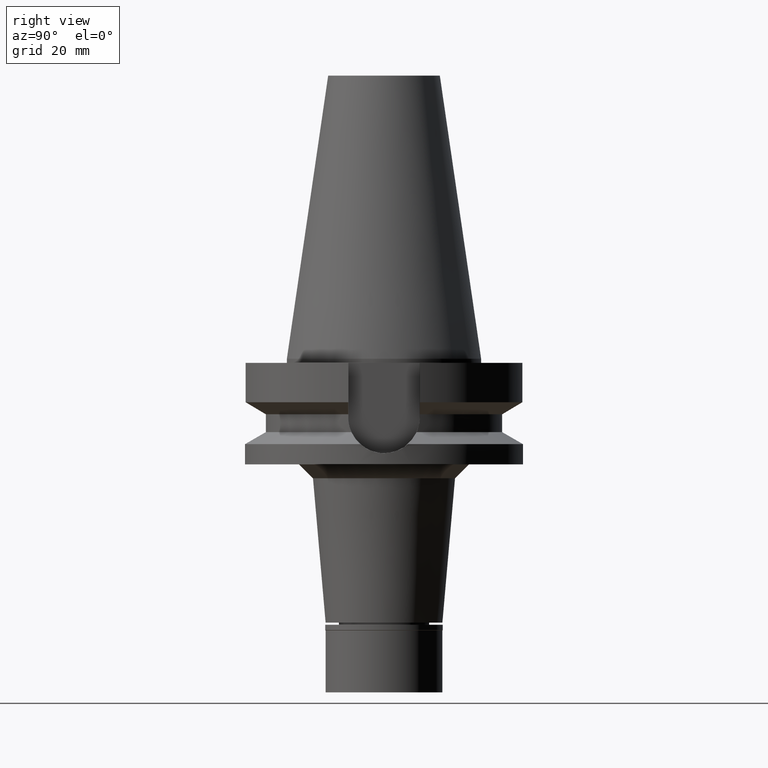
[diagram: clean part render]
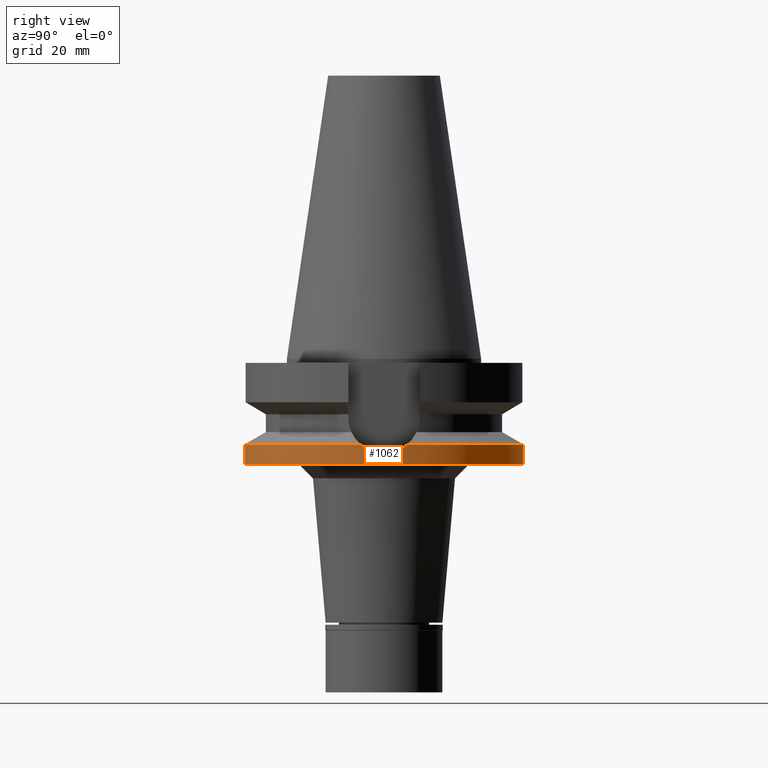
[diagram: same view with one face highlighted and labeled with its STEP entity id]
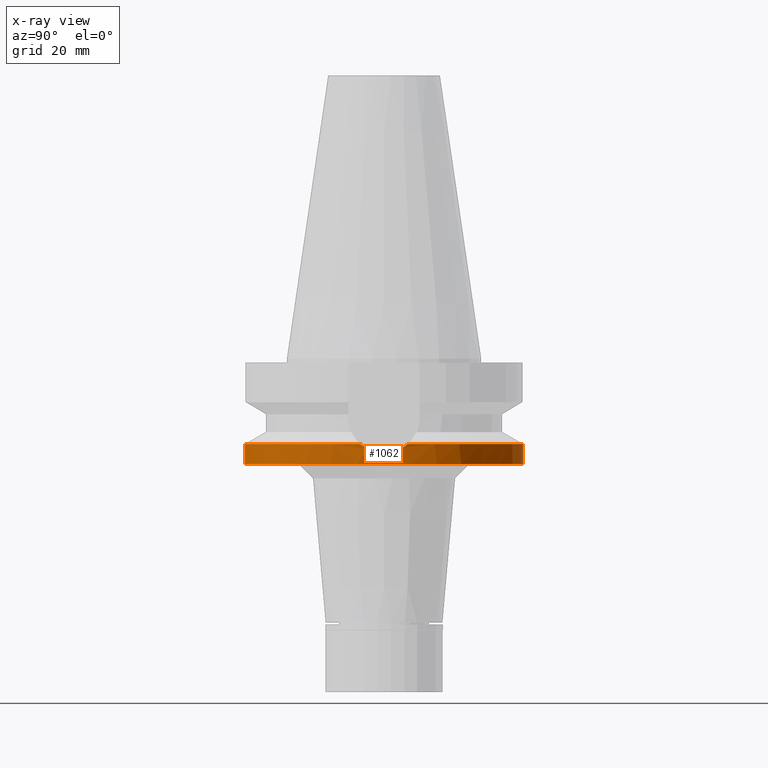
[diagram: x-ray of the same camera — body ghosted, the highlighted face saturated]
A machine part, right view. The second image highlights one B-rep face of the part: STEP entity #1062.
The next image is the same camera in x-ray: the body ghosted, the highlighted face saturated — about 0% of this face is hidden behind the body in this view.
In plain terms, the highlighted cylindrical surface (partial cylindrical patch) has radius 50 mm, axis along (0, 0, -1).
Its self-contained STEP definition (entity closure, byte-faithful):
#11 = CARTESIAN_POINT ( 'NONE',  ( 49.91305952682014180, -3.031241889599813000, -33.66153705284913400 ) ) ;
#12 = CARTESIAN_POINT ( 'NONE',  ( 0.0000000000000000000, -50.00000000000000000, -30.73730776426999967 ) ) ;
#19 = CARTESIAN_POINT ( 'NONE',  ( 49.86956834937189598, 3.608176246662567088, -33.48463186534795710 ) ) ;
#50 = CARTESIAN_POINT ( 'NONE',  ( 49.62581592551390486, -6.100685968983930785, -32.46624463441564501 ) ) ;
#55 = DIRECTION ( 'NONE',  ( 0.0000000000000000000, 1.000000000000000000, 0.0000000000000000000 ) ) ;
#56 = CARTESIAN_POINT ( 'NONE',  ( 49.90869784456032221, 3.032821747376086119, -33.64331055289952133 ) ) ;
#223 = VERTEX_POINT ( 'NONE', #2600 ) ;
#228 = CARTESIAN_POINT ( 'NONE',  ( 0.0000000000000000000, 0.0000000000000000000, -30.73730776426999967 ) ) ;
#315 = EDGE_CURVE ( 'NONE', #223, #1310, #3065, .T. ) ;
#318 = B_SPLINE_CURVE_WITH_KNOTS ( 'NONE', 3,
 ( #571, #769, #1541, #2003, #56, #19, #1559, #2518, #1809, #1521, #2035, #2070, #3032, #1736, #2531, #2779, #1504, #1573, #345 ),
 .UNSPECIFIED., .F., .F.,
 ( 4, 2, 2, 1, 1, 1, 1, 1, 2, 2, 2, 4 ),
 ( 0.0000000000000000000, 0.2499999999999529265, 0.3749999999999295008, 0.4374999999999175104, 0.4687499999999113487, 0.4843749999999085176, 0.4921874999999072409, 0.4960937499999069078, 0.4980468749999067968, 0.4999999999999066302, 0.7499999999999533706, 1.000000000000000000 ),
 .UNSPECIFIED. ) ;
#345 = CARTESIAN_POINT ( 'NONE',  ( 49.26250064874000145, 8.556052234130000045, -30.73730776426999967 ) ) ;
#349 = AXIS2_PLACEMENT_3D ( 'NONE', #2278, #1519, #55 ) ;
#393 = CIRCLE ( 'NONE', #349, 50.00000000000000000 ) ;
#459 = ORIENTED_EDGE ( 'NONE', *, *, #2711, .T. ) ;
#479 = VERTEX_POINT ( 'NONE', #2514 ) ;
#491 = VERTEX_POINT ( 'NONE', #1050 ) ;
#571 = CARTESIAN_POINT ( 'NONE',  ( 50.00000000000000000, 1.760521622284000026E-14, -34.00000000000000000 ) ) ;
#576 = EDGE_CURVE ( 'NONE', #1986, #491, #2929, .T. ) ;
#606 = EDGE_CURVE ( 'NONE', #1986, #950, #393, .T. ) ;
#652 = ORIENTED_EDGE ( 'NONE', *, *, #606, .T. ) ;
#666 = CARTESIAN_POINT ( 'NONE',  ( 49.38719034089409377, -7.838136322342054818, -31.37800129283974115 ) ) ;
#678 = CARTESIAN_POINT ( 'NONE',  ( 50.00000000000000000, 1.760521622284000026E-14, -34.00000000000000000 ) ) ;
#687 = CARTESIAN_POINT ( 'NONE',  ( 0.0000000000000000000, 50.00000000000000000, -30.73730776426999967 ) ) ;
#761 = CARTESIAN_POINT ( 'NONE',  ( 49.99999999999999289, -0.7410781195857881753, -34.00000000000000711 ) ) ;
#769 = CARTESIAN_POINT ( 'NONE',  ( 50.00000000000002132, 0.7410986975418327738, -34.00000000000000711 ) ) ;
#770 = ORIENTED_EDGE ( 'NONE', *, *, #1145, .F. ) ;
#780 = CARTESIAN_POINT ( 'NONE',  ( 49.78563763144784815, -4.625094769537975381, -33.13881278609864722 ) ) ;
#859 = AXIS2_PLACEMENT_3D ( 'NONE', #2446, #2212, #987 ) ;
#950 = VERTEX_POINT ( 'NONE', #1857 ) ;
#987 = DIRECTION ( 'NONE',  ( 0.0000000000000000000, -1.000000000000000000, 0.0000000000000000000 ) ) ;
#1050 = CARTESIAN_POINT ( 'NONE',  ( 0.0000000000000000000, 50.00000000000000000, -38.00000000000000000 ) ) ;
#1062 = ADVANCED_FACE ( 'NONE', ( #2637 ), #2905, .T. ) ;
#1100 = DIRECTION ( 'NONE',  ( 0.0000000000000000000, 2.152361642122000014E-14, -1.000000000000000000 ) ) ;
#1102 = VERTEX_POINT ( 'NONE', #678 ) ;
#1145 = EDGE_CURVE ( 'NONE', #223, #1102, #2424, .T. ) ;
#1292 = CARTESIAN_POINT ( 'NONE',  ( 49.86089524291224251, -3.802281370894036172, -33.45152773113399292 ) ) ;
#1310 = VERTEX_POINT ( 'NONE', #1713 ) ;
#1380 = AXIS2_PLACEMENT_3D ( 'NONE', #2876, #1456, #2438 ) ;
#1456 = DIRECTION ( 'NONE',  ( 0.0000000000000000000, 0.0000000000000000000, -1.000000000000000000 ) ) ;
#1502 = DIRECTION ( 'NONE',  ( 0.9852500129747439050, -0.1711210446826074982, 0.0000000000000000000 ) ) ;
#1504 = CARTESIAN_POINT ( 'NONE',  ( 49.49359661582517589, 7.117097526527320639, -31.87764505416970806 ) ) ;
#1512 = CARTESIAN_POINT ( 'NONE',  ( 50.00000000000000000, 1.760521622284000026E-14, -34.00000000000000000 ) ) ;
#1519 = DIRECTION ( 'NONE',  ( 0.0000000000000000000, 0.0000000000000000000, -1.000000000000000000 ) ) ;
#1521 = CARTESIAN_POINT ( 'NONE',  ( 49.79885843044085902, 4.480234945109148548, -33.19371721205796888 ) ) ;
#1532 = CARTESIAN_POINT ( 'NONE',  ( 49.79053563887168821, -4.571955316139179715, -33.15915263189389606 ) ) ;
#1541 = CARTESIAN_POINT ( 'NONE',  ( 49.98260911324959466, 1.500697561118663037, -33.93573404242073366 ) ) ;
#1559 = CARTESIAN_POINT ( 'NONE',  ( 49.84837320614479950, 3.895659756273468499, -33.39815591681483653 ) ) ;
#1573 = CARTESIAN_POINT ( 'NONE',  ( 49.38718636511594440, 7.838159213372867029, -31.37798086407496356 ) ) ;
#1655 = CARTESIAN_POINT ( 'NONE',  ( 49.49360537160681872, -7.117033889162193816, -31.87769203011113461 ) ) ;
#1713 = CARTESIAN_POINT ( 'NONE',  ( 0.0000000000000000000, -50.00000000000000000, -30.73730776426999967 ) ) ;
#1724 = CIRCLE ( 'NONE', #859, 50.00000000000000000 ) ;
#1736 = CARTESIAN_POINT ( 'NONE',  ( 49.79171235785210570, 4.559090113751346429, -33.16404259909707974 ) ) ;
#1747 = DIRECTION ( 'NONE',  ( 0.0000000000000000000, -2.054527022025999694E-14, -1.000000000000000000 ) ) ;
#1762 = CARTESIAN_POINT ( 'NONE',  ( 49.77980747408390982, -4.687522623544541744, -33.11462325490769842 ) ) ;
#1809 = CARTESIAN_POINT ( 'NONE',  ( 49.80628861887182524, 4.396903317400822964, -33.22452886463877064 ) ) ;
#1857 = CARTESIAN_POINT ( 'NONE',  ( 49.26250064874000145, 8.556052234130000045, -30.73730776426999967 ) ) ;
#1897 = VECTOR ( 'NONE', #1100, 1000.000000000000000 ) ;
#1964 = DIRECTION ( 'NONE',  ( 0.0000000000000000000, 0.0000000000000000000, -1.000000000000000000 ) ) ;
#1973 = CARTESIAN_POINT ( 'NONE',  ( 49.71771672566180200, -5.301668118691679865, -32.85661610119427678 ) ) ;
#1986 = VERTEX_POINT ( 'NONE', #2895 ) ;
#1995 = LINE ( 'NONE', #12, #2803 ) ;
#2003 = CARTESIAN_POINT ( 'NONE',  ( 49.93043645299832178, 2.648747860243228835, -33.73005492103364134 ) ) ;
#2008 = ORIENTED_EDGE ( 'NONE', *, *, #2266, .F. ) ;
#2035 = CARTESIAN_POINT ( 'NONE',  ( 49.79509875509479855, 4.521875414842351226, -33.17810980417562661 ) ) ;
#2070 = CARTESIAN_POINT ( 'NONE',  ( 49.79347791256135736, 4.539715750548777073, -33.17137767971033213 ) ) ;
#2111 = EDGE_CURVE ( 'NONE', #479, #491, #1724, .T. ) ;
#2154 = AXIS2_PLACEMENT_3D ( 'NONE', #228, #1964, #1502 ) ;
#2212 = DIRECTION ( 'NONE',  ( 0.0000000000000000000, 0.0000000000000000000, 1.000000000000000000 ) ) ;
#2220 = CARTESIAN_POINT ( 'NONE',  ( 49.78972506718459101, -4.580790312870194114, -33.15578537449392371 ) ) ;
#2266 = EDGE_CURVE ( 'NONE', #1102, #950, #318, .T. ) ;
#2278 = CARTESIAN_POINT ( 'NONE',  ( 0.0000000000000000000, 0.0000000000000000000, -30.73730776426999967 ) ) ;
#2282 = ORIENTED_EDGE ( 'NONE', *, *, #576, .F. ) ;
#2379 = ORIENTED_EDGE ( 'NONE', *, *, #2111, .T. ) ;
#2424 = B_SPLINE_CURVE_WITH_KNOTS ( 'NONE', 3,
 ( #2864, #666, #1655, #50, #2460, #1973, #2507, #2972, #2953, #1762, #780, #2681, #2220, #1532, #2753, #1292, #11, #2935, #761, #1512 ),
 .UNSPECIFIED., .F., .F.,
 ( 4, 2, 2, 2, 1, 1, 1, 1, 2, 2, 2, 4 ),
 ( 0.0000000000000000000, 0.2499999999999525935, 0.3749999999999290012, 0.4374999999999174549, 0.4687499999999117373, 0.4843749999999090727, 0.4921874999999077960, 0.4960937499999074074, 0.4980468749999072409, 0.4999999999999070743, 0.7499999999999534817, 1.000000000000000000 ),
 .UNSPECIFIED. ) ;
#2438 = DIRECTION ( 'NONE',  ( 0.0000000000000000000, -1.000000000000000000, 0.0000000000000000000 ) ) ;
#2446 = CARTESIAN_POINT ( 'NONE',  ( 0.0000000000000000000, 2.602558145207999832E-14, -38.00000000000000000 ) ) ;
#2460 = CARTESIAN_POINT ( 'NONE',  ( 49.66531744478927379, -5.772426571267776474, -32.63572039557347892 ) ) ;
#2507 = CARTESIAN_POINT ( 'NONE',  ( 49.73404098627922565, -5.148335372783573227, -32.92469446692175694 ) ) ;
#2514 = CARTESIAN_POINT ( 'NONE',  ( 0.0000000000000000000, -50.00000000000000000, -38.00000000000000000 ) ) ;
#2518 = CARTESIAN_POINT ( 'NONE',  ( 49.82079234668906054, 4.230048389756713156, -33.28454250731769548 ) ) ;
#2531 = CARTESIAN_POINT ( 'NONE',  ( 49.73972550528594638, 5.127766590707350858, -32.94800240999319385 ) ) ;
#2579 = EDGE_LOOP ( 'NONE', ( #2890, #459, #2379, #2282, #652, #2008, #770 ) ) ;
#2600 = CARTESIAN_POINT ( 'NONE',  ( 49.26250064874000145, -8.556052234130000045, -30.73730776426999967 ) ) ;
#2637 = FACE_OUTER_BOUND ( 'NONE', #2579, .T. ) ;
#2681 = CARTESIAN_POINT ( 'NONE',  ( 49.78850586346350582, -4.594055356242410681, -33.15072133027130263 ) ) ;
#2711 = EDGE_CURVE ( 'NONE', #1310, #479, #1995, .T. ) ;
#2753 = CARTESIAN_POINT ( 'NONE',  ( 49.79079948641094688, -4.569077029215530494, -33.16024877063336618 ) ) ;
#2779 = CARTESIAN_POINT ( 'NONE',  ( 49.66986618591017333, 5.762088554559961828, -32.66233169691362548 ) ) ;
#2803 = VECTOR ( 'NONE', #1747, 1000.000000000000000 ) ;
#2864 = CARTESIAN_POINT ( 'NONE',  ( 49.26250064874000145, -8.556052234130000045, -30.73730776426999967 ) ) ;
#2876 = CARTESIAN_POINT ( 'NONE',  ( 0.0000000000000000000, 2.602558145207999832E-14, 112.5150000000000006 ) ) ;
#2890 = ORIENTED_EDGE ( 'NONE', *, *, #315, .T. ) ;
#2895 = CARTESIAN_POINT ( 'NONE',  ( 0.0000000000000000000, 50.00000000000000000, -30.73730776426999967 ) ) ;
#2905 = CYLINDRICAL_SURFACE ( 'NONE', #1380, 50.00000000000000000 ) ;
#2929 = LINE ( 'NONE', #687, #1897 ) ;
#2935 = CARTESIAN_POINT ( 'NONE',  ( 49.98261190536401699, -1.500633726765293607, -33.93573757106626942 ) ) ;
#2953 = CARTESIAN_POINT ( 'NONE',  ( 49.76777238602569753, -4.813761785251925218, -33.06473290383409136 ) ) ;
#2972 = CARTESIAN_POINT ( 'NONE',  ( 49.75681412769522183, -4.924294299731083235, -33.01930483956995488 ) ) ;
#3032 = CARTESIAN_POINT ( 'NONE',  ( 49.79239522796140704, 4.551608051118150478, -33.16687998454737141 ) ) ;
#3065 = CIRCLE ( 'NONE', #2154, 50.00000000000000000 ) ;